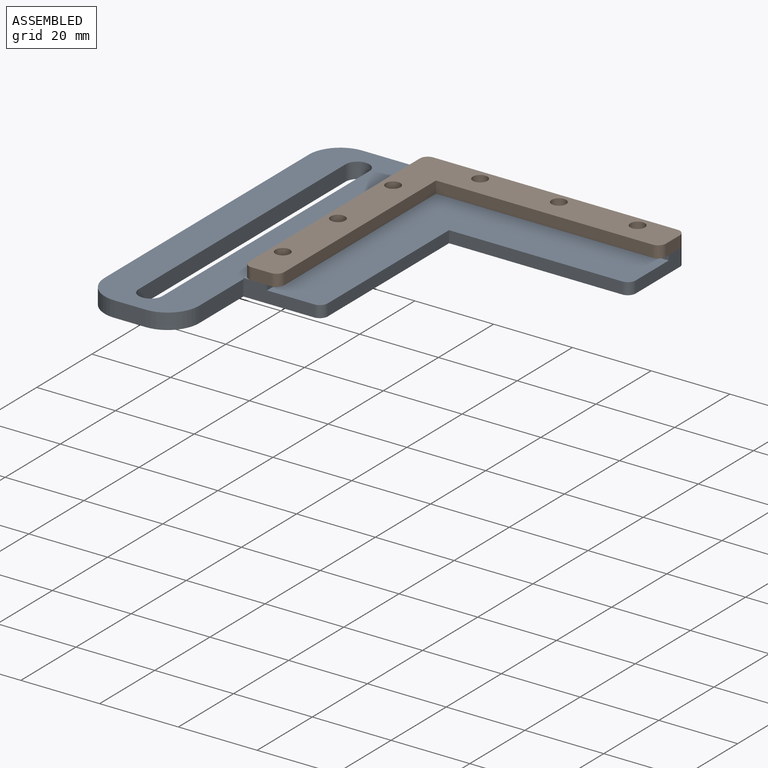
[diagram: assembled view]
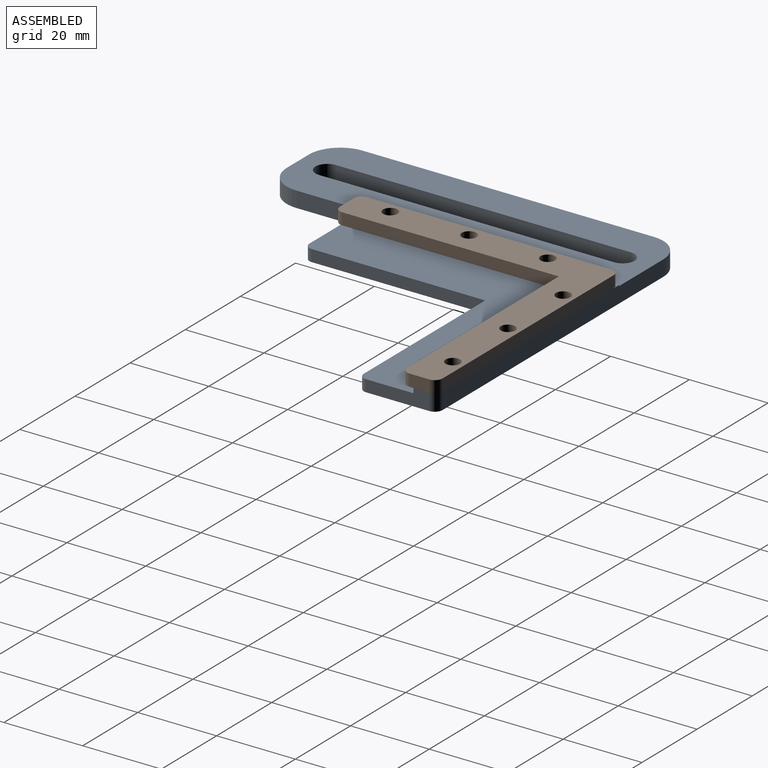
[diagram: assembled view, second angle]
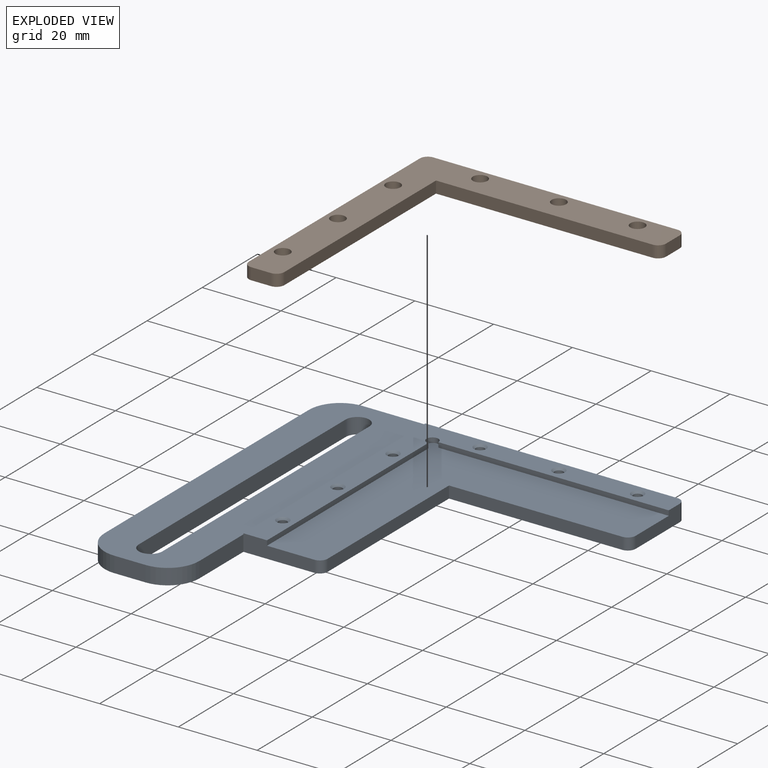
[diagram: exploded view]
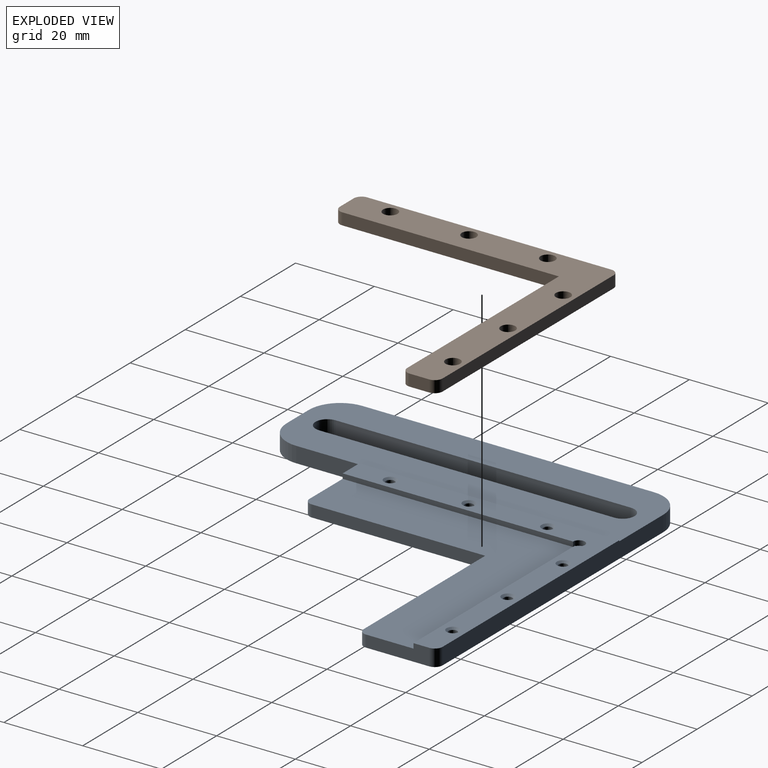
[diagram: exploded view, second angle]
ASSEMBLY  parts=2 mates=2
PART A: 44 faces, bbox 90x90x4.3 mm
  f0: plane 18x4.25mm, normal (0,-1,0), area 61.5mm2, adj f1,f5,f6,f7,f10,f12,f42
  f1: plane 58.5x1.25mm, normal (1,0,0), area 73.1mm2, adj f0,f6,f7,f11
  f2: plane 58.5x1.25mm, normal (0,-1,0), area 73.1mm2, adj f3,f6,f7,f11
  f3: plane 16x4.25mm, normal (1,0,0), area 53mm2, adj f2,f6,f7,f10,f41,f43
  f4: plane 80x4.25mm, normal (0,1,0), area 336mm2, adj f5,f6,f10,f15,f40,f43
  f5: plane 66x0.25mm, normal (-1,0,0), area 16.5mm2, adj f0,f4,f6,f15
  f6: plane 66x66mm, normal (0,0,1), area 701.6mm2, adj f0,f1,f2,f3,f4,f5,f11,f32
  f7: plane 61.5x61.5mm, normal (0,0,1), area 1487.6mm2, adj f0,f1,f2,f3,f8,f9,f11,f41
  f8: plane 44x3mm, normal (1,0,0), area 132mm2, adj f7,f9,f10,f42
  f9: plane 44x3mm, normal (0,-1,0), area 132mm2, adj f7,f8,f10,f41
  f10: plane 90x90mm, normal (0,0,-1), area 3829.7mm2, adj f0,f3,f4,f8,f9,f12,f13,f14
  f11: cylinder r=1.5mm len=3mm, axis (0,0,1), area 8.8mm2, adj f1,f2,f6,f7
  f12: plane 16x4mm, normal (1,0,0), area 64mm2, adj f0,f10,f15,f38
  f13: plane 8x4mm, normal (0,-1,0), area 32mm2, adj f10,f15,f38,f39
  f14: plane 74x4mm, normal (-1,0,0), area 296mm2, adj f10,f15,f39,f40
  f15: plane 90x24mm, normal (0,0,1), area 1640.5mm2, adj f4,f5,f12,f13,f14,f16,f17,f18
  f16: plane 75x4mm, normal (-1,0,0), area 300mm2, adj f10,f15,f17,f19
  f17: cylinder r=3mm len=6mm, axis (0,0,1), area 37.7mm2, adj f10,f15,f16,f18
  f18: plane 75x4mm, normal (1,0,0), area 300mm2, adj f10,f15,f17,f19
  f19: cylinder r=3mm len=6mm, axis (0,0,1), area 37.7mm2, adj f10,f15,f16,f18
  f20: cylinder r=1.1mm len=3.25mm, axis (0,0,1), area 22.5mm2, adj f27,f37
  f21: cylinder r=1.1mm len=3.25mm, axis (0,0,1), area 22.5mm2, adj f29,f33
  f22: cylinder r=1.1mm len=3.25mm, axis (0,0,1), area 22.5mm2, adj f31,f36
  f23: cylinder r=1.1mm len=3.25mm, axis (0,0,1), area 22.5mm2, adj f26,f35
  f24: cylinder r=1.1mm len=3.25mm, axis (0,0,1), area 22.5mm2, adj f30,f34
  f25: cylinder r=1.1mm len=3.25mm, axis (0,0,1), area 22.5mm2, adj f28,f32
  f26: cone r=1.6mm half-angle=45deg, axis (0,0,-1), area 6mm2, adj f10,f23
  f27: cone r=1.6mm half-angle=45deg, axis (0,0,-1), area 6mm2, adj f10,f20
  f28: cone r=1.6mm half-angle=45deg, axis (0,0,-1), area 6mm2, adj f10,f25
  f29: cone r=1.6mm half-angle=45deg, axis (0,0,-1), area 6mm2, adj f10,f21
  f30: cone r=1.6mm half-angle=45deg, axis (0,0,-1), area 6mm2, adj f10,f24
  f31: cone r=1.6mm half-angle=45deg, axis (0,0,-1), area 6mm2, adj f10,f22
  f32: cone r=1.1mm half-angle=45deg, axis (0,0,1), area 6mm2, adj f6,f25
  f33: cone r=1.1mm half-angle=45deg, axis (0,0,1), area 6mm2, adj f6,f21
  f34: cone r=1.1mm half-angle=45deg, axis (0,0,1), area 6mm2, adj f6,f24
  f35: cone r=1.1mm half-angle=45deg, axis (0,0,1), area 6mm2, adj f6,f23
  f36: cone r=1.1mm half-angle=45deg, axis (0,0,1), area 6mm2, adj f6,f22
  f37: cone r=1.1mm half-angle=45deg, axis (0,0,1), area 6mm2, adj f6,f20
  f38: cylinder r=8mm len=8mm, axis (0,0,1), area 50.3mm2, adj f10,f12,f13,f15
  f39: cylinder r=8mm len=8mm, axis (0,0,1), area 50.3mm2, adj f10,f13,f14,f15
  f40: cylinder r=8mm len=8mm, axis (0,0,1), area 50.3mm2, adj f4,f10,f14,f15
  f41: cylinder r=2mm len=3mm, axis (0,0,1), area 9.4mm2, adj f3,f7,f9,f10
  f42: cylinder r=2mm len=3mm, axis (0,0,1), area 9.4mm2, adj f0,f7,f8,f10
  f43: cylinder r=2mm len=4.25mm, axis (0,0,-1), area 13.4mm2, adj f3,f4,f6,f10
PART B: 19 faces, bbox 66x66x3 mm
  f0: plane 55x3mm, normal (1,0,0), area 165mm2, adj f1,f6,f7,f18
  f1: plane 55x3mm, normal (0,-1,0), area 165mm2, adj f0,f6,f7,f14
  f2: plane 5x3mm, normal (1,0,0), area 15mm2, adj f6,f7,f14,f15
  f3: plane 62x3mm, normal (0,1,0), area 186mm2, adj f6,f7,f15,f16
  f4: plane 62x3mm, normal (-1,0,0), area 186mm2, adj f6,f7,f16,f17
  f5: plane 5x3mm, normal (0,-1,0), area 15mm2, adj f6,f7,f17,f18
  f6: plane 66x66mm, normal (0,0,1), area 1038.2mm2, adj f0,f1,f2,f3,f4,f5,f8,f9
  f7: plane 66x66mm, normal (0,0,-1), area 1038.2mm2, adj f0,f1,f2,f3,f4,f5,f8,f9
  f8: cylinder r=1.85mm len=3.7mm, axis (0,0,1), area 34.9mm2, adj f6,f7
  f9: cylinder r=1.85mm len=3.7mm, axis (0,0,1), area 34.9mm2, adj f6,f7
  f10: cylinder r=1.85mm len=3.7mm, axis (0,0,1), area 34.9mm2, adj f6,f7
  f11: cylinder r=1.85mm len=3.7mm, axis (0,0,1), area 34.9mm2, adj f6,f7
  f12: cylinder r=1.85mm len=3.7mm, axis (0,0,1), area 34.9mm2, adj f6,f7
  f13: cylinder r=1.85mm len=3.7mm, axis (0,0,1), area 34.9mm2, adj f6,f7
  f14: cylinder r=2mm len=3mm, axis (0,0,-1), area 9.4mm2, adj f1,f2,f6,f7
  f15: cylinder r=2mm len=3mm, axis (0,0,-1), area 9.4mm2, adj f2,f3,f6,f7
  f16: cylinder r=2mm len=3mm, axis (0,0,-1), area 9.4mm2, adj f3,f4,f6,f7
  f17: cylinder r=2mm len=3mm, axis (0,0,-1), area 9.4mm2, adj f4,f5,f6,f7
  f18: cylinder r=2mm len=3mm, axis (0,0,-1), area 9.4mm2, adj f0,f5,f6,f7
PLACE A at identity fixed
PLACE B t=(-47,32,1.25)mm
MATE cylindrical B.f13 <-> A.f22  axis (0,0,1) through (-53,-15,2.75)mm
MATE planar B.f7 <-> A.f6  axis (0,0,-1) through (-19.5,32,1.25)mm
